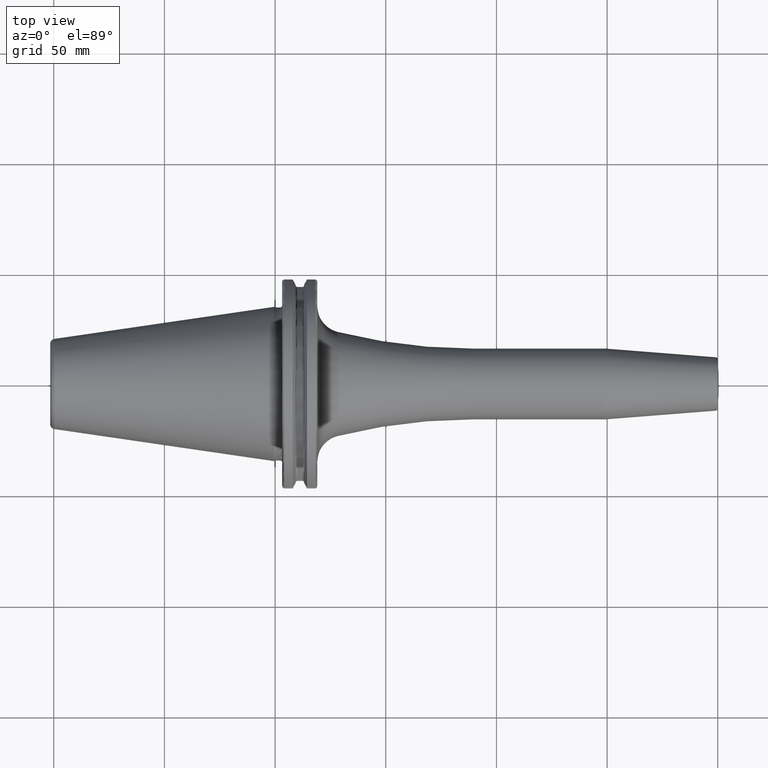
[diagram: clean part render]
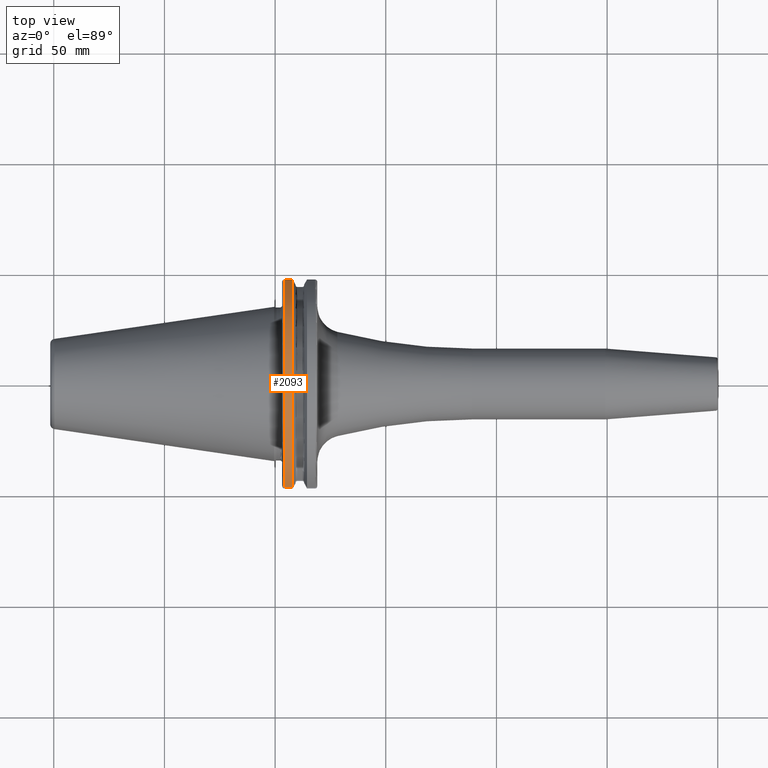
[diagram: same view with one face highlighted and labeled with its STEP entity id]
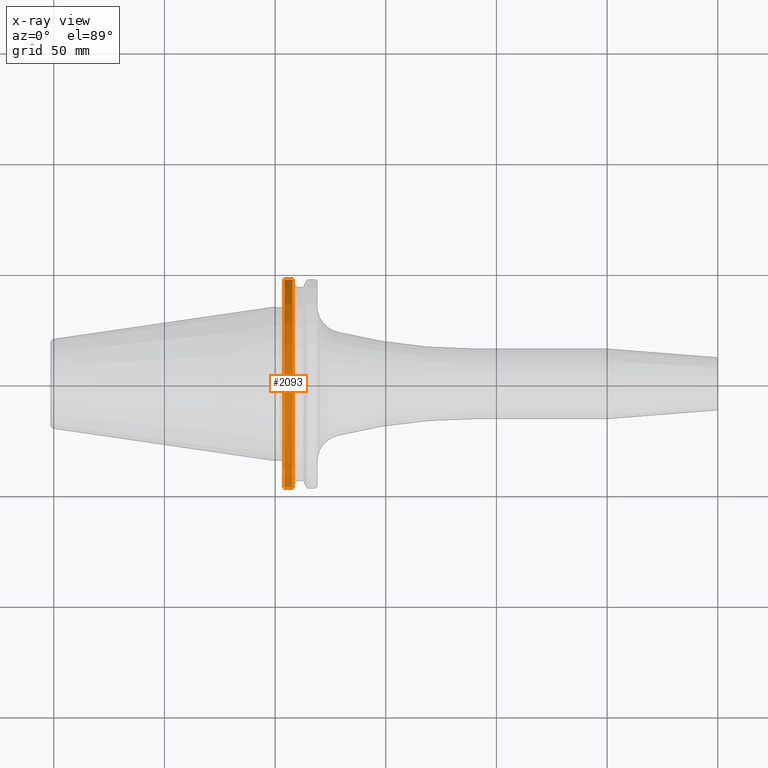
[diagram: x-ray of the same camera — body ghosted, the highlighted face saturated]
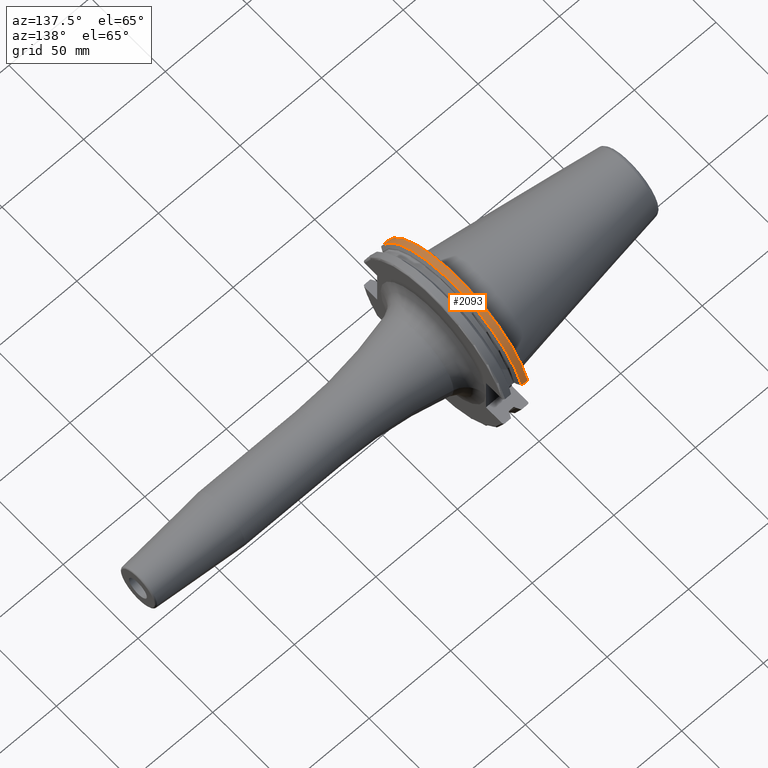
[diagram: same view with one face highlighted and labeled with its STEP entity id]
A machine part, top view. The second image highlights one B-rep face of the part: STEP entity #2093.
The next image is the same camera in x-ray: the body ghosted, the highlighted face saturated — about 0% of this face is hidden behind the body in this view.
A second angle (auxiliary view) of the same face is appended — the face is thin or edge-on in the first view.
In plain terms, the highlighted cylindrical surface (partial cylindrical patch) has radius 48.7375 mm, axis along (1, 0, 0).
Its self-contained STEP definition (entity closure, byte-faithful):
#333=CARTESIAN_POINT('',(7.934621614173E0,4.699929686974E1,1.29E1));
#345=CARTESIAN_POINT('',(7.934621614173E0,-4.699929686974E1,1.29E1));
#476=DIRECTION('',(1.E0,0.E0,0.E0));
#477=VECTOR('',#476,3.734621614173E0);
#478=CARTESIAN_POINT('',(4.2E0,4.699929686974E1,1.29E1));
#479=LINE('',#478,#477);
#480=CARTESIAN_POINT('',(7.934621614173E0,0.E0,0.E0));
#481=DIRECTION('',(1.E0,0.E0,0.E0));
#482=DIRECTION('',(0.E0,9.643354064066E-1,2.646832521159E-1));
#483=AXIS2_PLACEMENT_3D('',#480,#481,#482);
#485=DIRECTION('',(1.E0,0.E0,0.E0));
#486=VECTOR('',#485,3.734621614173E0);
#487=CARTESIAN_POINT('',(4.2E0,-4.699929686974E1,1.29E1));
#488=LINE('',#487,#486);
#518=CARTESIAN_POINT('',(4.2E0,0.E0,0.E0));
#519=DIRECTION('',(1.E0,0.E0,0.E0));
#520=DIRECTION('',(0.E0,9.643354064066E-1,2.646832521159E-1));
#521=AXIS2_PLACEMENT_3D('',#518,#519,#520);
#1336=VERTEX_POINT('',#333);
#1337=VERTEX_POINT('',#345);
#1364=CARTESIAN_POINT('',(4.2E0,4.699929686974E1,1.29E1));
#1365=VERTEX_POINT('',#1364);
#1368=CARTESIAN_POINT('',(4.2E0,-4.699929686974E1,1.29E1));
#1369=VERTEX_POINT('',#1368);
#2081=CARTESIAN_POINT('',(-1.076325E2,0.E0,0.E0));
#2082=DIRECTION('',(1.E0,0.E0,0.E0));
#2083=DIRECTION('',(0.E0,-1.E0,0.E0));
#2084=AXIS2_PLACEMENT_3D('',#2081,#2082,#2083);
#2085=CYLINDRICAL_SURFACE('',#2084,4.87375E1);
#2086=ORIENTED_EDGE('',*,*,#1917,.T.);
#2087=ORIENTED_EDGE('',*,*,#1950,.T.);
#2088=ORIENTED_EDGE('',*,*,#1981,.F.);
#2090=ORIENTED_EDGE('',*,*,#2089,.F.);
#2091=EDGE_LOOP('',(#2086,#2087,#2088,#2090));
#2092=FACE_OUTER_BOUND('',#2091,.F.);
#2093=ADVANCED_FACE('',(#2092),#2085,.T.);
#484=CIRCLE('',#483,4.87375E1);
#522=CIRCLE('',#521,4.87375E1);
#1917=EDGE_CURVE('',#1365,#1336,#479,.T.);
#1950=EDGE_CURVE('',#1336,#1337,#484,.T.);
#1981=EDGE_CURVE('',#1369,#1337,#488,.T.);
#2089=EDGE_CURVE('',#1365,#1369,#522,.T.);